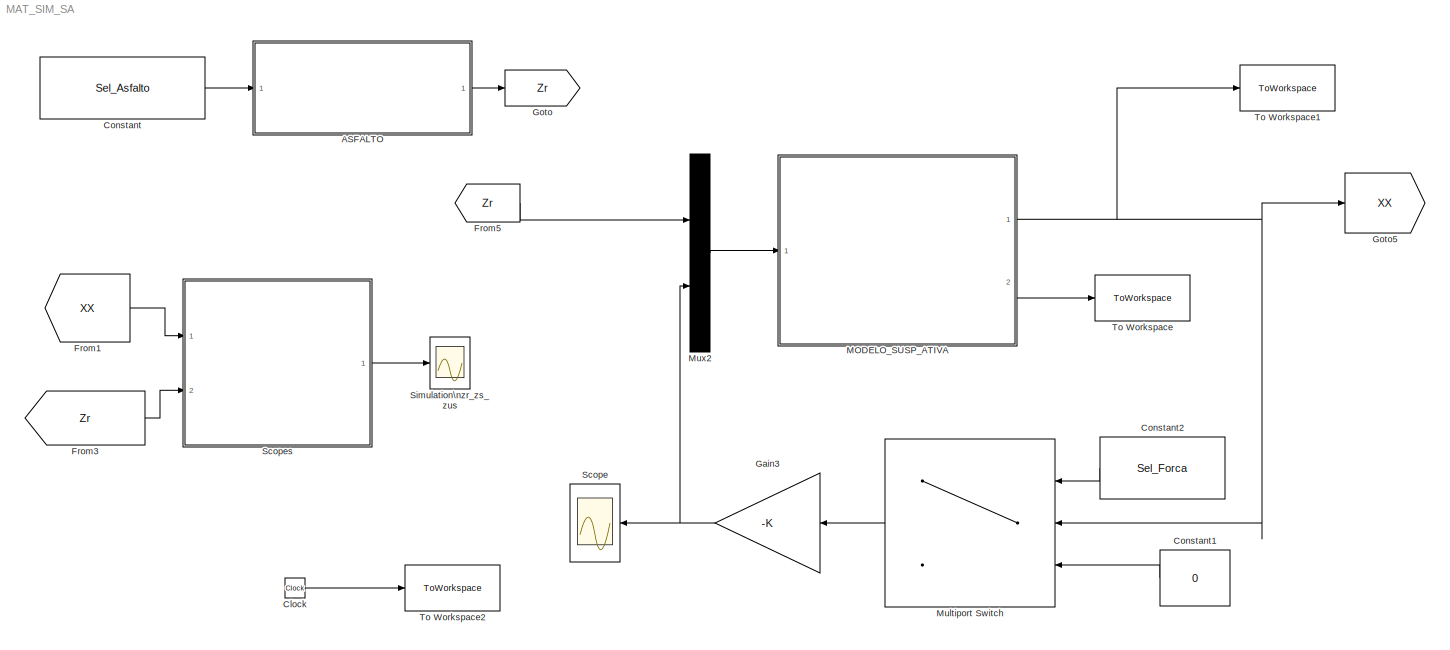
MODEL MAT_SIM_SA
KIND model
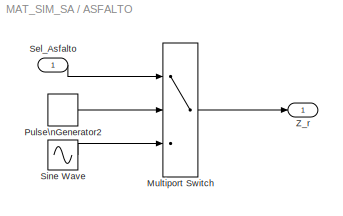
BLOCK [SubSystem] ASFALTO
  FunctionWithSeparateData = off
  MaskHideContents = off
  MinAlgLoopOccurrences = off
  Opaque = off
  Ports = [1, 1]
  PropExecContextOutsideSubsystem = off
  RTWSystemCode = Auto
  RequestExecContextInheritance = off
  SID = 60
BLOCK [MultiPortSwitch] ASFALTO/Multiport Switch
  DiagnosticForDefault = None
  InputSameDT = off
  Inputs = 2
  Ports = [3, 1]
  SID = 63
  SaturateOnIntegerOverflow = off
BLOCK [DiscretePulseGenerator] ASFALTO/Pulse\nGenerator2
  Amplitude = 0.02
  Period = 3
  PhaseDelay = .1
  Ports = [0, 1]
  PulseType = Time based
  PulseWidth = 50
  SID = 9
BLOCK [Inport] ASFALTO/Sel_Asfalto
  IconDisplay = Port number
  SID = 66
BLOCK [Sin] ASFALTO/Sine Wave
  Amplitude = 0.02
  Frequency = pi/0.3
  Ports = [0, 1]
  SID = 10
  SampleTime = 0
BLOCK [Outport] ASFALTO/Z_r
  IconDisplay = Port number
  SID = 61
BLOCK [Clock] Clock
  SID = 93
BLOCK [Constant] Constant
  SID = 64
  Value = Sel_Asfalto
BLOCK [Constant] Constant1
  SID = 89
  Value = 0
BLOCK [Constant] Constant2
  SID = 90
  Value = Sel_Forca
BLOCK [From] From1
  CloseFcn = tagdialog Close
  GotoTag = XX
  SID = 67
BLOCK [From] From3
  CloseFcn = tagdialog Close
  GotoTag = Zr
  SID = 68
BLOCK [From] From5
  GotoTag = Zr
  SID = 37
BLOCK [Gain] Gain3
  Gain = -K
  Multiplication = Matrix(K*u) (u vector)
  OutDataTypeStr = Inherit: Inherit via internal rule
  ParamDataTypeStr = Inherit: Inherit via internal rule
  SID = 39
  SaturateOnIntegerOverflow = off
BLOCK [Goto] Goto
  GotoTag = Zr
  SID = 11
BLOCK [Goto] Goto5
  GotoTag = XX
  SID = 41
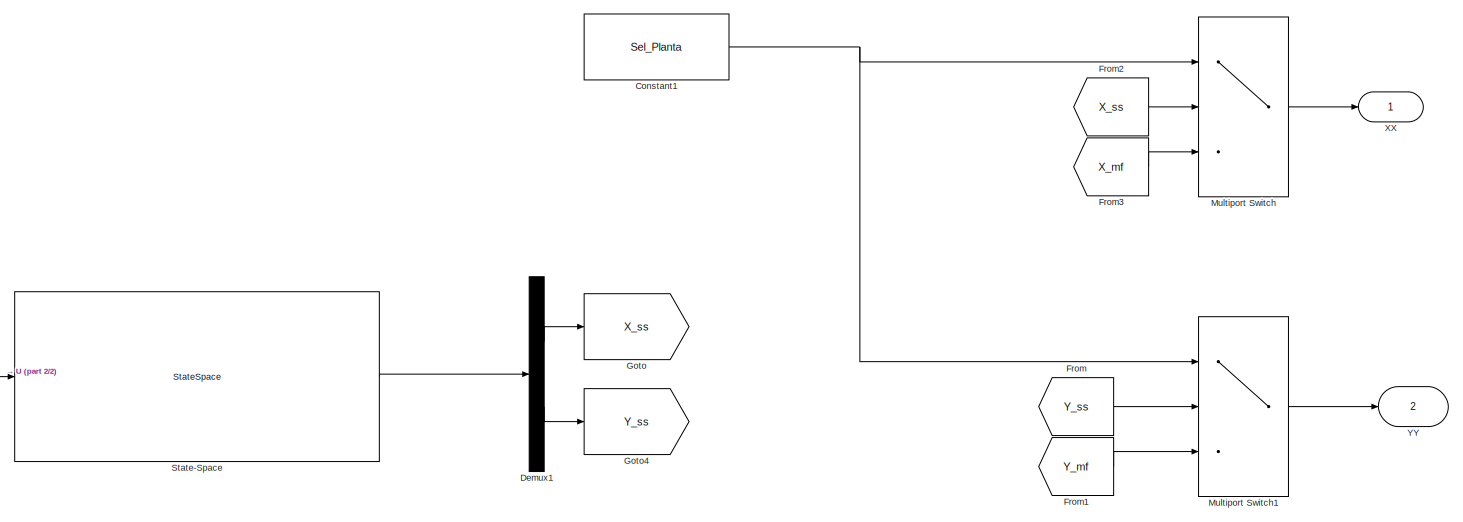
[diagram: MODELO_SUSP_ATIVA - part 1/2, full width, top band]
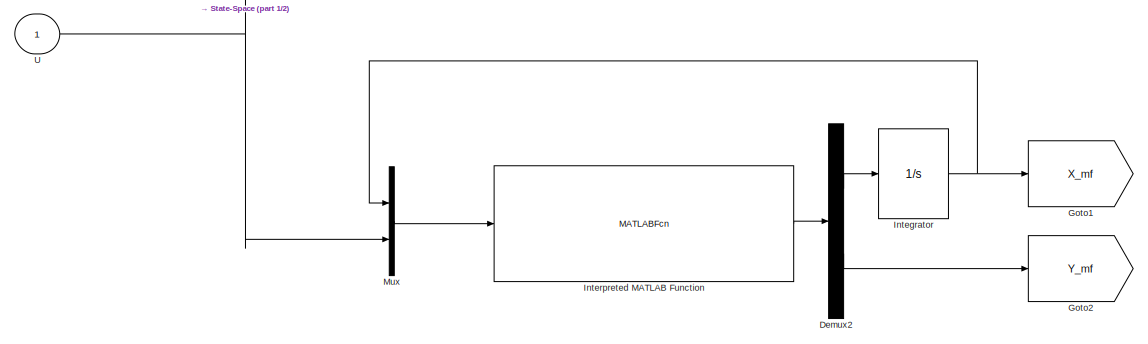
[diagram: MODELO_SUSP_ATIVA - part 2/2, bottom left region]
BLOCK [SubSystem] MODELO_SUSP_ATIVA
  FunctionWithSeparateData = off
  MaskHideContents = off
  MinAlgLoopOccurrences = off
  Opaque = off
  Ports = [1, 2]
  PropExecContextOutsideSubsystem = off
  RTWSystemCode = Auto
  RequestExecContextInheritance = off
  SID = 82
BLOCK [Constant] MODELO_SUSP_ATIVA/Constant1
  SID = 101
  Value = Sel_Planta
BLOCK [Demux] MODELO_SUSP_ATIVA/Demux1
  DisplayOption = bar
  Outputs = [4;2]
  Ports = [1, 2]
  SID = 40
BLOCK [Demux] MODELO_SUSP_ATIVA/Demux2
  DisplayOption = bar
  Outputs = [4;2]
  Ports = [1, 2]
  SID = 100
BLOCK [From] MODELO_SUSP_ATIVA/From
  GotoTag = Y_ss
  SID = 111
BLOCK [From] MODELO_SUSP_ATIVA/From1
  GotoTag = Y_mf
  SID = 112
BLOCK [From] MODELO_SUSP_ATIVA/From2
  GotoTag = X_ss
  SID = 113
BLOCK [From] MODELO_SUSP_ATIVA/From3
  GotoTag = X_mf
  SID = 114
BLOCK [Goto] MODELO_SUSP_ATIVA/Goto
  GotoTag = X_ss
  SID = 104
BLOCK [Goto] MODELO_SUSP_ATIVA/Goto1
  GotoTag = X_mf
  SID = 116
BLOCK [Goto] MODELO_SUSP_ATIVA/Goto2
  GotoTag = Y_mf
  SID = 117
BLOCK [Goto] MODELO_SUSP_ATIVA/Goto4
  GotoTag = Y_ss
  SID = 115
BLOCK [Integrator] MODELO_SUSP_ATIVA/Integrator
  Ports = [1, 1]
  SID = 99
BLOCK [MATLABFcn] MODELO_SUSP_ATIVA/Interpreted MATLAB Function
  MATLABFcn = Modelo_SA
  OutputDimensions = 6
  Ports = [1, 1]
  SID = 94
BLOCK [MultiPortSwitch] MODELO_SUSP_ATIVA/Multiport Switch
  DiagnosticForDefault = None
  InputSameDT = off
  Inputs = 2
  Ports = [3, 1]
  SID = 95
  SaturateOnIntegerOverflow = off
BLOCK [MultiPortSwitch] MODELO_SUSP_ATIVA/Multiport Switch1
  DiagnosticForDefault = None
  InputSameDT = off
  Inputs = 2
  Ports = [3, 1]
  SID = 102
  SaturateOnIntegerOverflow = off
BLOCK [Mux] MODELO_SUSP_ATIVA/Mux
  DisplayOption = bar
  Inputs = [4;2]
  Ports = [2, 1]
  SID = 98
BLOCK [StateSpace] MODELO_SUSP_ATIVA/State-Space
  A = A
  B = B
  C = C
  D = D
  SID = 35
BLOCK [Inport] MODELO_SUSP_ATIVA/U
  IconDisplay = Port number
  SID = 83
BLOCK [Outport] MODELO_SUSP_ATIVA/XX
  IconDisplay = Port number
  SID = 84
BLOCK [Outport] MODELO_SUSP_ATIVA/YY
  IconDisplay = Port number
  Port = 2
  SID = 85
BLOCK [MultiPortSwitch] Multiport Switch
  DiagnosticForDefault = None
  InputSameDT = off
  Inputs = 2
  Ports = [3, 1]
  SID = 88
  SaturateOnIntegerOverflow = off
BLOCK [Mux] Mux2
  DisplayOption = bar
  Inputs = 2
  Ports = [2, 1]
  SID = 38
BLOCK [Scope] Scope
  Floating = off
  LimitDataPoints = off
  NumInputPorts = 1
  Ports = [1]
  SID = 91
  SampleTime = 0
  SaveName = forca
  SaveToWorkspace = on
  ShowLegends = off
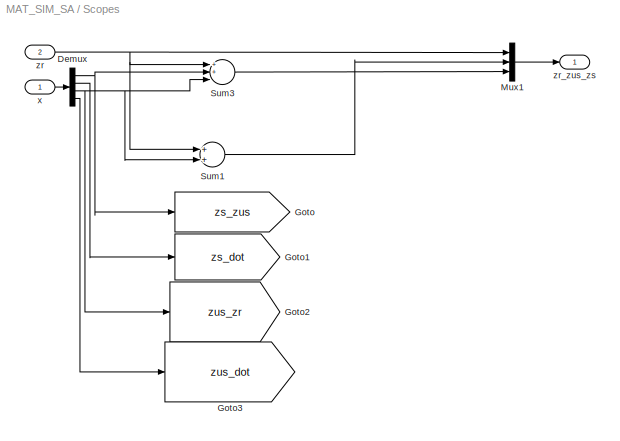
BLOCK [SubSystem] Scopes
  FunctionWithSeparateData = off
  MaskHideContents = off
  MinAlgLoopOccurrences = off
  Opaque = off
  Ports = [2, 1]
  PropExecContextOutsideSubsystem = off
  RTWSystemCode = Auto
  RequestExecContextInheritance = off
  SID = 69
BLOCK [Demux] Scopes/Demux
  DisplayOption = bar
  Ports = [1, 4]
  SID = 72
BLOCK [Goto] Scopes/Goto
  GotoTag = zs_zus
  SID = 73
BLOCK [Goto] Scopes/Goto1
  GotoTag = zs_dot
  SID = 74
BLOCK [Goto] Scopes/Goto2
  GotoTag = zus_zr
  SID = 75
BLOCK [Goto] Scopes/Goto3
  GotoTag = zus_dot
  SID = 76
BLOCK [Mux] Scopes/Mux1
  DisplayOption = bar
  Inputs = 3
  Ports = [3, 1]
  SID = 77
BLOCK [Sum] Scopes/Sum1
  Inputs = 2
  Ports = [2, 1]
  SID = 78
BLOCK [Sum] Scopes/Sum3
  Inputs = 3
  Ports = [3, 1]
  SID = 79
BLOCK [Inport] Scopes/x
  IconDisplay = Port number
  SID = 70
BLOCK [Inport] Scopes/zr
  IconDisplay = Port number
  Port = 2
  SID = 71
BLOCK [Outport] Scopes/zr_zus_zs
  IconDisplay = Port number
  SID = 80
BLOCK [Scope] Simulation\nzr_zs_zus
  Floating = off
  LimitDataPoints = off
  MaxDataPoints = 300000
  NumInputPorts = 1
  Ports = [1]
  SID = 81
  SampleTime = 0
  SaveName = Z
  SaveToWorkspace = on
  ShowLegends = off
  YMax = 0.0325
  YMin = -0.0225
BLOCK [ToWorkspace] To Workspace
  MaxDataPoints = inf
  Ports = [1]
  SID = 86
  SampleTime = -1
  VariableName = YY
BLOCK [ToWorkspace] To Workspace1
  MaxDataPoints = inf
  Ports = [1]
  SID = 87
  SampleTime = -1
  VariableName = XX
BLOCK [ToWorkspace] To Workspace2
  MaxDataPoints = inf
  Ports = [1]
  SID = 92
  SampleTime = -1
  VariableName = tempo
LINE ASFALTO/Multiport Switch:1 -> ASFALTO/Z_r:1
LINE ASFALTO/Pulse\nGenerator2:1 -> ASFALTO/Multiport Switch:2
LINE ASFALTO/Sel_Asfalto:1 -> ASFALTO/Multiport Switch:1
LINE ASFALTO/Sine Wave:1 -> ASFALTO/Multiport Switch:3
LINE ASFALTO:1 -> Goto:1
LINE Clock:1 -> To Workspace2:1
LINE Constant1:1 -> Multiport Switch:3
LINE Constant2:1 -> Multiport Switch:1
LINE Constant:1 -> ASFALTO:1
LINE From1:1 -> Scopes:1
LINE From3:1 -> Scopes:2
LINE From5:1 -> Mux2:1
NET Gain3:1 -> Mux2:2, Scope:1
NET MODELO_SUSP_ATIVA/Constant1:1 -> MODELO_SUSP_ATIVA/Multiport Switch1:1, MODELO_SUSP_ATIVA/Multiport Switch:1
LINE MODELO_SUSP_ATIVA/Demux1:1 -> MODELO_SUSP_ATIVA/Goto:1
LINE MODELO_SUSP_ATIVA/Demux1:2 -> MODELO_SUSP_ATIVA/Goto4:1
LINE MODELO_SUSP_ATIVA/Demux2:1 -> MODELO_SUSP_ATIVA/Integrator:1
LINE MODELO_SUSP_ATIVA/Demux2:2 -> MODELO_SUSP_ATIVA/Goto2:1
LINE MODELO_SUSP_ATIVA/From1:1 -> MODELO_SUSP_ATIVA/Multiport Switch1:3
LINE MODELO_SUSP_ATIVA/From2:1 -> MODELO_SUSP_ATIVA/Multiport Switch:2
LINE MODELO_SUSP_ATIVA/From3:1 -> MODELO_SUSP_ATIVA/Multiport Switch:3
LINE MODELO_SUSP_ATIVA/From:1 -> MODELO_SUSP_ATIVA/Multiport Switch1:2
NET MODELO_SUSP_ATIVA/Integrator:1 -> MODELO_SUSP_ATIVA/Goto1:1, MODELO_SUSP_ATIVA/Mux:1
LINE MODELO_SUSP_ATIVA/Interpreted MATLAB Function:1 -> MODELO_SUSP_ATIVA/Demux2:1
LINE MODELO_SUSP_ATIVA/Multiport Switch1:1 -> MODELO_SUSP_ATIVA/YY:1
LINE MODELO_SUSP_ATIVA/Multiport Switch:1 -> MODELO_SUSP_ATIVA/XX:1
LINE MODELO_SUSP_ATIVA/Mux:1 -> MODELO_SUSP_ATIVA/Interpreted MATLAB Function:1
LINE MODELO_SUSP_ATIVA/State-Space:1 -> MODELO_SUSP_ATIVA/Demux1:1
NET MODELO_SUSP_ATIVA/U:1 -> MODELO_SUSP_ATIVA/Mux:2, MODELO_SUSP_ATIVA/State-Space:1
NET MODELO_SUSP_ATIVA:1 -> Goto5:1, Multiport Switch:2, To Workspace1:1
LINE MODELO_SUSP_ATIVA:2 -> To Workspace:1
LINE Multiport Switch:1 -> Gain3:1
LINE Mux2:1 -> MODELO_SUSP_ATIVA:1
NET Scopes/Demux:1 -> Scopes/Goto:1, Scopes/Sum3:2
LINE Scopes/Demux:2 -> Scopes/Goto1:1
NET Scopes/Demux:3 -> Scopes/Goto2:1, Scopes/Sum1:2, Scopes/Sum3:3
LINE Scopes/Demux:4 -> Scopes/Goto3:1
LINE Scopes/Mux1:1 -> Scopes/zr_zus_zs:1
LINE Scopes/Sum1:1 -> Scopes/Mux1:2
LINE Scopes/Sum3:1 -> Scopes/Mux1:3
LINE Scopes/x:1 -> Scopes/Demux:1
NET Scopes/zr:1 -> Scopes/Mux1:1, Scopes/Sum1:1, Scopes/Sum3:1
LINE Scopes:1 -> Simulation\nzr_zs_zus:1
note: NET lines group one-source signal fan-out (src -> all destinations, sorted); 1:1 wires keep LINE
